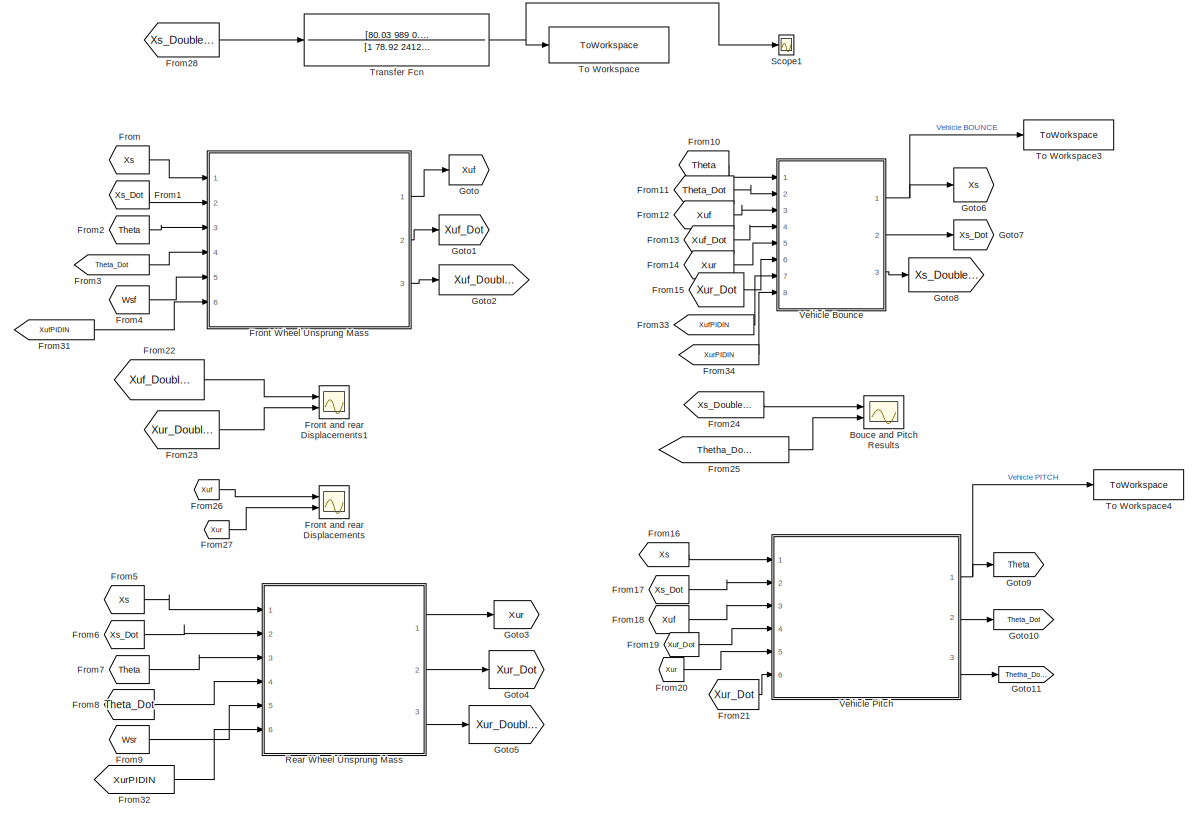
[diagram: root canvas - part 1/2, right side, full height]
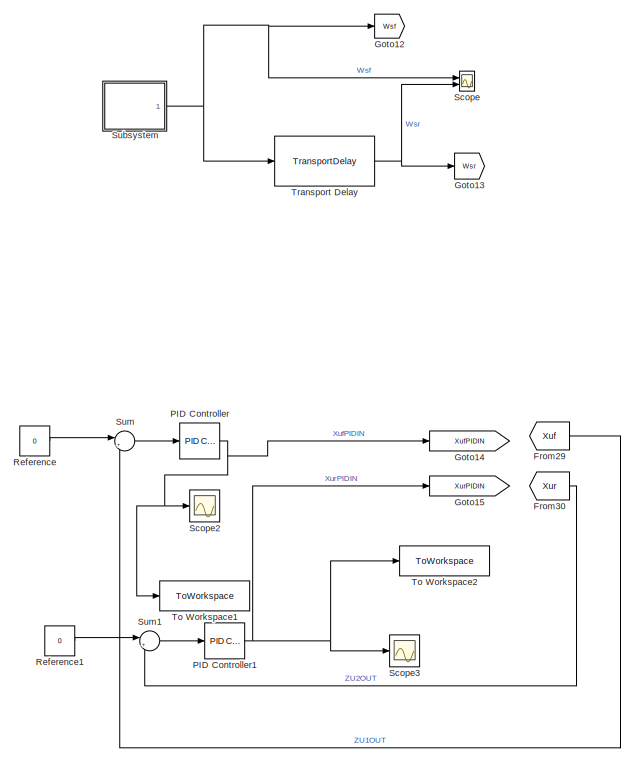
[diagram: root canvas - part 2/2, left side, full height]
MODEL slx_b99695bca971
KIND model
CONFIG AbsTol = auto
CONFIG EnableMultiTasking = off
CONFIG FixedStep = auto
CONFIG InitFcn = Lf = 1.04;\nKsf = 33200;\nKsr = 43160;\nCsf = 1760;\nCsr = 1627;\nKuf =152000;\nCuf = 0;\nMuf = 48;\nMb = 477.5;\nLr = 1.4;\nKur = 152000;\nCur = 0;\nMur = 57;\nv=45;\nI=1380;\n
CONFIG MaxStep = auto
CONFIG MinStep = auto
CONFIG RelTol = 1e-3
CONFIG SampleTimeConstraint = Unconstrained
CONFIG SolverName = VariableStepAuto
CONFIG StartTime = 0.0
CONFIG StopTime = 10.0
BLOCK [Scope] Bouce and Pitch Results
  Floating = off
  NumInputPorts = 2
  Ports = [2]
  ScopeSpecificationString = Simulink.scopes.TimeScopeBlockCfg('CurrentConfiguration', extmgr.ConfigurationSet(extmgr.Configuration('Core','General UI',true),extmgr.Configuration('Core','Source UI',true),extmgr.Configuration('Sources','WiredSimulink',true,'DataLoggingVariableName','ScopeData3'),extmgr.Configuration('Visuals','Time Domain',true,'SerializedDisplays',{struct('MinYLimReal','-2.93103','MaxYLimReal','3.24682','YLab...<+1773ch>
BLOCK [From] From
  GotoTag = Xs
BLOCK [From] From1
  GotoTag = Xs_Dot
BLOCK [From] From10
  GotoTag = Theta
BLOCK [From] From11
  GotoTag = Theta_Dot
BLOCK [From] From12
  GotoTag = Xuf
BLOCK [From] From13
  GotoTag = Xuf_Dot
BLOCK [From] From14
  GotoTag = Xur
BLOCK [From] From15
  GotoTag = Xur_Dot
BLOCK [From] From16
  GotoTag = Xs
BLOCK [From] From17
  GotoTag = Xs_Dot
BLOCK [From] From18
  GotoTag = Xuf
BLOCK [From] From19
  GotoTag = Xuf_Dot
BLOCK [From] From2
  GotoTag = Theta
BLOCK [From] From20
  GotoTag = Xur
BLOCK [From] From21
  GotoTag = Xur_Dot
BLOCK [From] From22
  GotoTag = Xuf_DoubleDot
BLOCK [From] From23
  GotoTag = Xur_DoubleDot
BLOCK [From] From24
  GotoTag = Xs_DoubleDot
BLOCK [From] From25
  GotoTag = Thetha_DoubleDot
BLOCK [From] From26
  GotoTag = Xuf
BLOCK [From] From27
  GotoTag = Xur
BLOCK [From] From28
  GotoTag = Xs_DoubleDot
BLOCK [From] From29
  GotoTag = Xuf
BLOCK [From] From3
  GotoTag = Theta_Dot
BLOCK [From] From30
  GotoTag = Xur
BLOCK [From] From31
  GotoTag = XufPIDIN
BLOCK [From] From32
  GotoTag = XurPIDIN
BLOCK [From] From33
  GotoTag = XufPIDIN
BLOCK [From] From34
  GotoTag = XurPIDIN
BLOCK [From] From4
  GotoTag = Wsf
BLOCK [From] From5
  GotoTag = Xs
BLOCK [From] From6
  GotoTag = Xs_Dot
BLOCK [From] From7
  GotoTag = Theta
BLOCK [From] From8
  GotoTag = Theta_Dot
BLOCK [From] From9
  GotoTag = Wsr
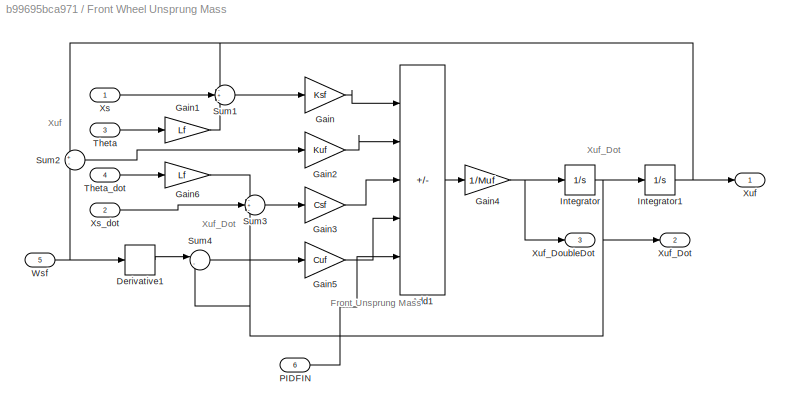
BLOCK [SubSystem] Front Wheel Unsprung Mass
  Ports = [6, 3]
  RequestExecContextInheritance = off
BLOCK [Sum] Front Wheel Unsprung Mass/Add1
  IconShape = rectangular
  Inputs = +-+--
  Ports = [5, 1]
BLOCK [Derivative] Front Wheel Unsprung Mass/Derivative1
BLOCK [Gain] Front Wheel Unsprung Mass/Gain
  Gain = Ksf
BLOCK [Gain] Front Wheel Unsprung Mass/Gain1
  Gain = Lf
BLOCK [Gain] Front Wheel Unsprung Mass/Gain2
  Gain = Kuf
BLOCK [Gain] Front Wheel Unsprung Mass/Gain3
  Gain = Csf
BLOCK [Gain] Front Wheel Unsprung Mass/Gain4
  Gain = 1/Muf
BLOCK [Gain] Front Wheel Unsprung Mass/Gain5
  Gain = Cuf
BLOCK [Gain] Front Wheel Unsprung Mass/Gain6
  Gain = Lf
BLOCK [Integrator] Front Wheel Unsprung Mass/Integrator
  Ports = [1, 1]
BLOCK [Integrator] Front Wheel Unsprung Mass/Integrator1
  Ports = [1, 1]
BLOCK [Inport] Front Wheel Unsprung Mass/PIDFIN
  Port = 6
BLOCK [Sum] Front Wheel Unsprung Mass/Sum1
  Inputs = -+-
  Ports = [3, 1]
BLOCK [Sum] Front Wheel Unsprung Mass/Sum2
  Inputs = +-
  Ports = [2, 1]
BLOCK [Sum] Front Wheel Unsprung Mass/Sum3
  Inputs = -+-
  Ports = [3, 1]
BLOCK [Sum] Front Wheel Unsprung Mass/Sum4
  Inputs = |-+
  Ports = [2, 1]
BLOCK [Inport] Front Wheel Unsprung Mass/Theta
  Port = 3
BLOCK [Inport] Front Wheel Unsprung Mass/Theta_dot
  Port = 4
BLOCK [Inport] Front Wheel Unsprung Mass/Wsf
  Port = 5
BLOCK [Inport] Front Wheel Unsprung Mass/Xs
BLOCK [Inport] Front Wheel Unsprung Mass/Xs_dot
  Port = 2
BLOCK [Outport] Front Wheel Unsprung Mass/Xuf
  VectorParamsAs1DForOutWhenUnconnected = off
BLOCK [Outport] Front Wheel Unsprung Mass/Xuf_Dot
  Port = 2
  VectorParamsAs1DForOutWhenUnconnected = off
BLOCK [Outport] Front Wheel Unsprung Mass/Xuf_DoubleDot
  Port = 3
  VectorParamsAs1DForOutWhenUnconnected = off
BLOCK [Scope] Front and rear Displacements
  Floating = off
  NameLocation = right
  NumInputPorts = 2
  Ports = [2]
  ScopeSpecificationString = Simulink.scopes.TimeScopeBlockCfg('CurrentConfiguration', extmgr.ConfigurationSet(extmgr.Configuration('Core','General UI',true),extmgr.Configuration('Core','Source UI',true),extmgr.Configuration('Sources','WiredSimulink',true,'DataLoggingVariableName','ScopeData4'),extmgr.Configuration('Visuals','Time Domain',true,'SerializedDisplays',{struct('MinYLimReal','-0.02464','MaxYLimReal','0.02086','YLab...<+1423ch>
BLOCK [Scope] Front and rear Displacements1
  Floating = off
  NameLocation = right
  NumInputPorts = 2
  Ports = [2]
  ScopeSpecificationString = Simulink.scopes.TimeScopeBlockCfg('CurrentConfiguration', extmgr.ConfigurationSet(extmgr.Configuration('Core','General UI',true),extmgr.Configuration('Core','Source UI',true),extmgr.Configuration('Sources','WiredSimulink',true,'DataLoggingVariableName','ScopeData2'),extmgr.Configuration('Visuals','Time Domain',true,'SerializedDisplays',{struct('MinYLimReal','-0.02464','MaxYLimReal','0.02086','YLab...<+1423ch>
BLOCK [Goto] Goto
  GotoTag = Xuf
BLOCK [Goto] Goto1
  GotoTag = Xuf_Dot
BLOCK [Goto] Goto10
  GotoTag = Theta_Dot
BLOCK [Goto] Goto11
  GotoTag = Thetha_DoubleDot
BLOCK [Goto] Goto12
  GotoTag = Wsf
BLOCK [Goto] Goto13
  GotoTag = Wsr
BLOCK [Goto] Goto14
  GotoTag = XufPIDIN
BLOCK [Goto] Goto15
  GotoTag = XurPIDIN
BLOCK [Goto] Goto2
  GotoTag = Xuf_DoubleDot
BLOCK [Goto] Goto3
  GotoTag = Xur
BLOCK [Goto] Goto4
  GotoTag = Xur_Dot
BLOCK [Goto] Goto5
  GotoTag = Xur_DoubleDot
BLOCK [Goto] Goto6
  GotoTag = Xs
BLOCK [Goto] Goto7
  GotoTag = Xs_Dot
BLOCK [Goto] Goto8
  GotoTag = Xs_DoubleDot
BLOCK [Goto] Goto9
  GotoTag = Theta
BLOCK [Reference] PID Controller  REF=pid_lib/PID Controller
  Ports = [1, 1]
  SourceBlock = pid_lib/PID Controller
  SourceProductBaseCode = SL
  SourceType = PID 1dof
BLOCK [Reference] PID Controller1  REF=pid_lib/PID Controller
  Ports = [1, 1]
  SourceBlock = pid_lib/PID Controller
  SourceProductBaseCode = SL
  SourceType = PID 1dof
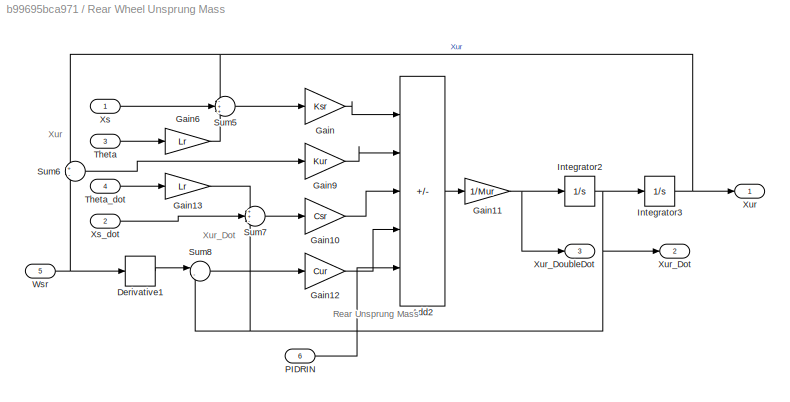
BLOCK [SubSystem] Rear Wheel Unsprung Mass
  Ports = [6, 3]
  RequestExecContextInheritance = off
BLOCK [Sum] Rear Wheel Unsprung Mass/Add2
  IconShape = rectangular
  Inputs = +-+--
  Ports = [5, 1]
BLOCK [Derivative] Rear Wheel Unsprung Mass/Derivative1
BLOCK [Gain] Rear Wheel Unsprung Mass/Gain
  Gain = Ksr
BLOCK [Gain] Rear Wheel Unsprung Mass/Gain10
  Gain = Csr
BLOCK [Gain] Rear Wheel Unsprung Mass/Gain11
  Gain = 1/Mur
BLOCK [Gain] Rear Wheel Unsprung Mass/Gain12
  Gain = Cur
BLOCK [Gain] Rear Wheel Unsprung Mass/Gain13
  Gain = Lr
BLOCK [Gain] Rear Wheel Unsprung Mass/Gain6
  Gain = Lr
BLOCK [Gain] Rear Wheel Unsprung Mass/Gain9
  Gain = Kur
BLOCK [Integrator] Rear Wheel Unsprung Mass/Integrator2
  Ports = [1, 1]
BLOCK [Integrator] Rear Wheel Unsprung Mass/Integrator3
  Ports = [1, 1]
BLOCK [Inport] Rear Wheel Unsprung Mass/PIDRIN
  Port = 6
BLOCK [Sum] Rear Wheel Unsprung Mass/Sum5
  Inputs = -++
  Ports = [3, 1]
BLOCK [Sum] Rear Wheel Unsprung Mass/Sum6
  Inputs = +-
  Ports = [2, 1]
BLOCK [Sum] Rear Wheel Unsprung Mass/Sum7
  Inputs = ++-
  Ports = [3, 1]
BLOCK [Sum] Rear Wheel Unsprung Mass/Sum8
  Inputs = |-+
  Ports = [2, 1]
BLOCK [Inport] Rear Wheel Unsprung Mass/Theta
  Port = 3
BLOCK [Inport] Rear Wheel Unsprung Mass/Theta_dot
  Port = 4
BLOCK [Inport] Rear Wheel Unsprung Mass/Wsr
  Port = 5
BLOCK [Inport] Rear Wheel Unsprung Mass/Xs
BLOCK [Inport] Rear Wheel Unsprung Mass/Xs_dot
  Port = 2
BLOCK [Outport] Rear Wheel Unsprung Mass/Xur
  VectorParamsAs1DForOutWhenUnconnected = off
BLOCK [Outport] Rear Wheel Unsprung Mass/Xur_Dot
  Port = 2
  VectorParamsAs1DForOutWhenUnconnected = off
BLOCK [Outport] Rear Wheel Unsprung Mass/Xur_DoubleDot
  Port = 3
  VectorParamsAs1DForOutWhenUnconnected = off
BLOCK [Constant] Reference
  Value = 0
BLOCK [Constant] Reference1
  Value = 0
BLOCK [Scope] Scope
  Floating = off
  NumInputPorts = 2
  Ports = [2]
  ScopeSpecificationString = Simulink.scopes.TimeScopeBlockCfg('CurrentConfiguration', extmgr.ConfigurationSet(extmgr.Configuration('Core','General UI',true),extmgr.Configuration('Core','Source UI',true),extmgr.Configuration('Sources','WiredSimulink',true,'DataLoggingVariableName','ScopeData1'),extmgr.Configuration('Visuals','Time Domain',true,'SerializedDisplays',{struct('MinYLimReal','-0.01243','MaxYLimReal','0.01409','YLab...<+1441ch>
BLOCK [Scope] Scope1
  Floating = off
  NumInputPorts = 1
  Ports = [1]
  ScopeSpecificationString = Simulink.scopes.TimeScopeBlockCfg('CurrentConfiguration', extmgr.ConfigurationSet(extmgr.Configuration('Core','General UI',true),extmgr.Configuration('Core','Source UI',true),extmgr.Configuration('Sources','WiredSimulink',true,'DataLoggingVariableName','ScopeData1'),extmgr.Configuration('Visuals','Time Domain',true,'SerializedDisplays',{struct('MinYLimReal','-2.33878','MaxYLimReal','2.44524','YLab...<+1674ch>
BLOCK [Scope] Scope2
  Floating = off
  NumInputPorts = 1
  Ports = [1]
  ScopeSpecificationString = Simulink.scopes.TimeScopeBlockCfg('CurrentConfiguration', extmgr.ConfigurationSet(extmgr.Configuration('Core','General UI',true),extmgr.Configuration('Core','Source UI',true),extmgr.Configuration('Sources','WiredSimulink',true,'DataLoggingVariableName','ScopeData1'),extmgr.Configuration('Visuals','Time Domain',true,'SerializedDisplays',{struct('MinYLimReal','-10.31479','MaxYLimReal','12.48243','YL...<+1400ch>
BLOCK [Scope] Scope3
  Floating = off
  NumInputPorts = 1
  Ports = [1]
  ScopeSpecificationString = Simulink.scopes.TimeScopeBlockCfg('CurrentConfiguration', extmgr.ConfigurationSet(extmgr.Configuration('Core','General UI',true),extmgr.Configuration('Core','Source UI',true),extmgr.Configuration('Sources','WiredSimulink',true,'DataLoggingVariableName','ScopeData2'),extmgr.Configuration('Visuals','Time Domain',true,'SerializedDisplays',{struct('MinYLimReal','-8.01177','MaxYLimReal','10.52695','YLa...<+1398ch>
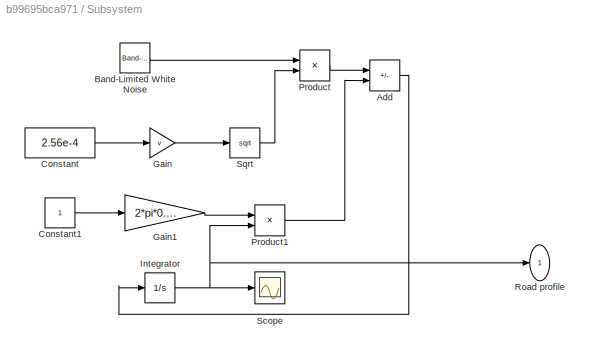
BLOCK [SubSystem] Subsystem
  Ports = [0, 1]
  RequestExecContextInheritance = off
BLOCK [Sum] Subsystem/Add
  IconShape = rectangular
  Inputs = +-
  Ports = [2, 1]
BLOCK [Reference] Subsystem/Band-Limited White Noise  REF=simulink/Sources/Band-Limited
White Noise
  Ports = [0, 1]
  SourceBlock = simulink/Sources/Band-Limited\nWhite Noise
  SourceProductBaseCode = SL
  SourceType = Band-Limited White Noise.
BLOCK [Constant] Subsystem/Constant
  Value = 2.56e-4
BLOCK [Constant] Subsystem/Constant1
BLOCK [Gain] Subsystem/Gain
  Gain = v
BLOCK [Gain] Subsystem/Gain1
  Gain = 2*pi*0.1*v
BLOCK [Integrator] Subsystem/Integrator
  Ports = [1, 1]
BLOCK [Product] Subsystem/Product
  Ports = [2, 1]
BLOCK [Product] Subsystem/Product1
  Ports = [2, 1]
BLOCK [Outport] Subsystem/Road profile
  NameLocation = top
  VectorParamsAs1DForOutWhenUnconnected = off
BLOCK [Scope] Subsystem/Scope
  Floating = off
  NumInputPorts = 1
  Ports = [1]
  ScopeSpecificationString = Simulink.scopes.TimeScopeBlockCfg('CurrentConfiguration', extmgr.ConfigurationSet(extmgr.Configuration('Core','General UI',true),extmgr.Configuration('Core','Source UI',true),extmgr.Configuration('Sources','WiredSimulink',true),extmgr.Configuration('Visuals','Time Domain',true,'SerializedDisplays',{struct('MinYLimReal','-0.01945','MaxYLimReal','0.01674','YLabelReal','','MinYLimMag','0.00000','MaxY...<+1425ch>
BLOCK [Sqrt] Subsystem/Sqrt
BLOCK [Sum] Sum
  Inputs = |+-
  Ports = [2, 1]
BLOCK [Sum] Sum1
  Inputs = |+-
  Ports = [2, 1]
BLOCK [ToWorkspace] To Workspace
  FixptAsFi = on
  MaxDataPoints = inf
  Ports = [1]
  SampleTime = -1
  VariableName = WeightedAcceleration
BLOCK [ToWorkspace] To Workspace1
  FixptAsFi = on
  MaxDataPoints = inf
  Ports = [1]
  SampleTime = -1
  SaveFormat = Timeseries
  VariableName = XufPIDIN
BLOCK [ToWorkspace] To Workspace2
  FixptAsFi = on
  MaxDataPoints = inf
  Ports = [1]
  SampleTime = -1
  SaveFormat = Timeseries
  VariableName = XurPIDIN
BLOCK [ToWorkspace] To Workspace3
  FixptAsFi = on
  MaxDataPoints = inf
  Ports = [1]
  SampleTime = -1
  SaveFormat = Timeseries
  VariableName = bounce
BLOCK [ToWorkspace] To Workspace4
  FixptAsFi = on
  MaxDataPoints = inf
  Ports = [1]
  SampleTime = -1
  SaveFormat = Timeseries
  VariableName = pitch
BLOCK [TransferFcn] Transfer Fcn
  Denominator = [1 78.92 2412 5614]
  Numerator = [80.03 989 0.021]
BLOCK [TransportDelay] Transport Delay
  DelayTime = 2.44/v
  Ports = [1, 1]
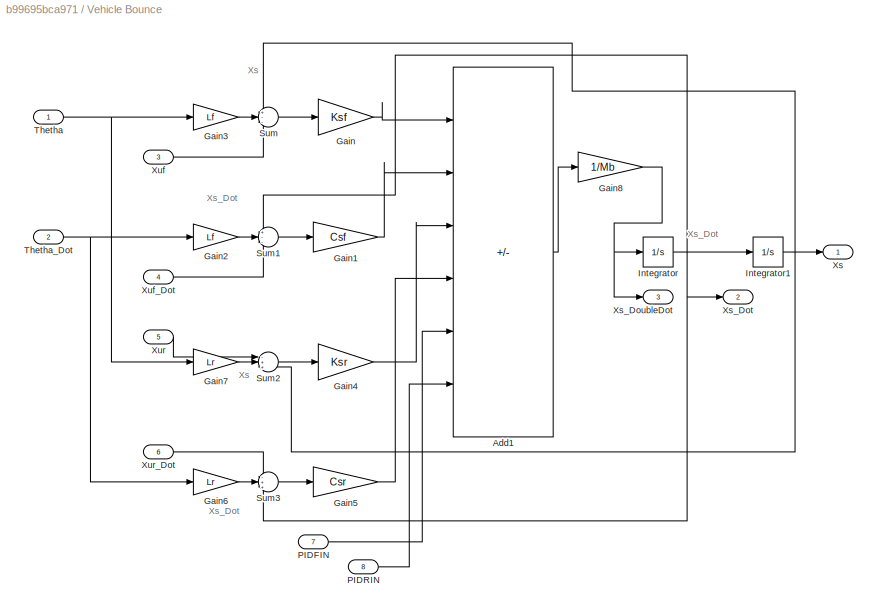
BLOCK [SubSystem] Vehicle Bounce
  Ports = [8, 3]
  RequestExecContextInheritance = off
BLOCK [Sum] Vehicle Bounce/Add1
  IconShape = rectangular
  Inputs = ----++
  Ports = [6, 1]
BLOCK [Gain] Vehicle Bounce/Gain
  Gain = Ksf
BLOCK [Gain] Vehicle Bounce/Gain1
  Gain = Csf
BLOCK [Gain] Vehicle Bounce/Gain2
  Gain = Lf
BLOCK [Gain] Vehicle Bounce/Gain3
  Gain = Lf
BLOCK [Gain] Vehicle Bounce/Gain4
  Gain = Ksr
BLOCK [Gain] Vehicle Bounce/Gain5
  Gain = Csr
BLOCK [Gain] Vehicle Bounce/Gain6
  Gain = Lr
BLOCK [Gain] Vehicle Bounce/Gain7
  Gain = Lr
BLOCK [Gain] Vehicle Bounce/Gain8
  Gain = 1/Mb
BLOCK [Integrator] Vehicle Bounce/Integrator
  Ports = [1, 1]
BLOCK [Integrator] Vehicle Bounce/Integrator1
  Ports = [1, 1]
BLOCK [Inport] Vehicle Bounce/PIDFIN
  Port = 7
BLOCK [Inport] Vehicle Bounce/PIDRIN
  Port = 8
BLOCK [Sum] Vehicle Bounce/Sum
  Inputs = +--
  Ports = [3, 1]
BLOCK [Sum] Vehicle Bounce/Sum1
  Inputs = +--
  Ports = [3, 1]
BLOCK [Sum] Vehicle Bounce/Sum2
  Inputs = -++
  Ports = [3, 1]
BLOCK [Sum] Vehicle Bounce/Sum3
  Inputs = -++
  Ports = [3, 1]
BLOCK [Inport] Vehicle Bounce/Thetha
BLOCK [Inport] Vehicle Bounce/Thetha_Dot
  Port = 2
BLOCK [Outport] Vehicle Bounce/Xs
  VectorParamsAs1DForOutWhenUnconnected = off
BLOCK [Outport] Vehicle Bounce/Xs_Dot
  Port = 2
  VectorParamsAs1DForOutWhenUnconnected = off
BLOCK [Outport] Vehicle Bounce/Xs_DoubleDot
  Port = 3
  VectorParamsAs1DForOutWhenUnconnected = off
BLOCK [Inport] Vehicle Bounce/Xuf
  Port = 3
BLOCK [Inport] Vehicle Bounce/Xuf_Dot
  Port = 4
BLOCK [Inport] Vehicle Bounce/Xur
  Port = 5
BLOCK [Inport] Vehicle Bounce/Xur_Dot
  Port = 6
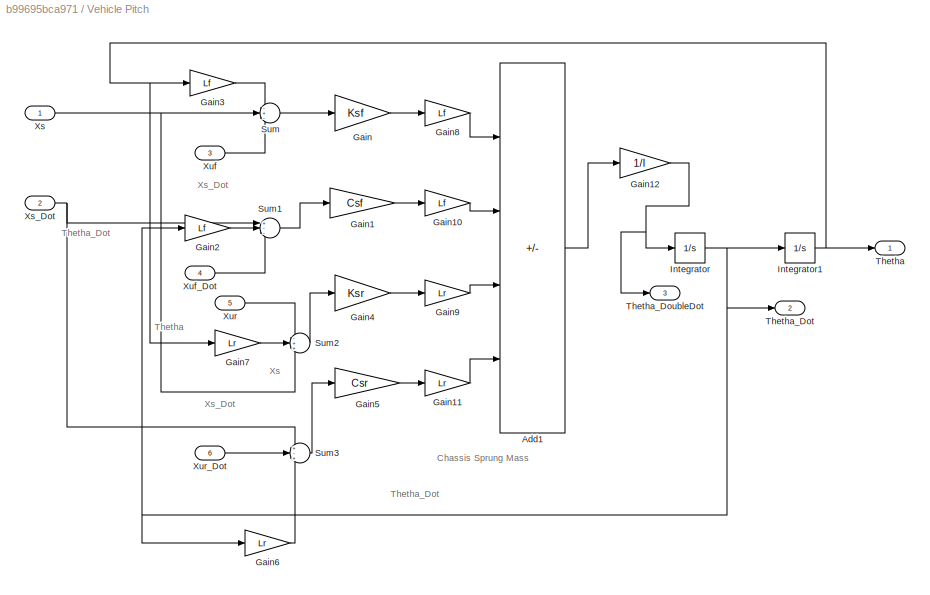
BLOCK [SubSystem] Vehicle Pitch
  Ports = [6, 3]
  RequestExecContextInheritance = off
BLOCK [Sum] Vehicle Pitch/Add1
  IconShape = rectangular
  Inputs = ++--
  Ports = [4, 1]
BLOCK [Gain] Vehicle Pitch/Gain
  Gain = Ksf
BLOCK [Gain] Vehicle Pitch/Gain1
  Gain = Csf
BLOCK [Gain] Vehicle Pitch/Gain10
  Gain = Lf
BLOCK [Gain] Vehicle Pitch/Gain11
  Gain = Lr
BLOCK [Gain] Vehicle Pitch/Gain12
  Gain = 1/I
BLOCK [Gain] Vehicle Pitch/Gain2
  Gain = Lf
BLOCK [Gain] Vehicle Pitch/Gain3
  Gain = Lf
BLOCK [Gain] Vehicle Pitch/Gain4
  Gain = Ksr
BLOCK [Gain] Vehicle Pitch/Gain5
  Gain = Csr
BLOCK [Gain] Vehicle Pitch/Gain6
  Gain = Lr
BLOCK [Gain] Vehicle Pitch/Gain7
  Gain = Lr
BLOCK [Gain] Vehicle Pitch/Gain8
  Gain = Lf
BLOCK [Gain] Vehicle Pitch/Gain9
  Gain = Lr
BLOCK [Integrator] Vehicle Pitch/Integrator
  Ports = [1, 1]
BLOCK [Integrator] Vehicle Pitch/Integrator1
  Ports = [1, 1]
BLOCK [Sum] Vehicle Pitch/Sum
  Inputs = -+-
  Ports = [3, 1]
BLOCK [Sum] Vehicle Pitch/Sum1
  Inputs = +--
  Ports = [3, 1]
BLOCK [Sum] Vehicle Pitch/Sum2
  Inputs = -++
  Ports = [3, 1]
BLOCK [Sum] Vehicle Pitch/Sum3
  Inputs = +-+
  Ports = [3, 1]
BLOCK [Outport] Vehicle Pitch/Thetha
  VectorParamsAs1DForOutWhenUnconnected = off
BLOCK [Outport] Vehicle Pitch/Thetha_Dot
  Port = 2
  VectorParamsAs1DForOutWhenUnconnected = off
BLOCK [Outport] Vehicle Pitch/Thetha_DoubleDot
  Port = 3
  VectorParamsAs1DForOutWhenUnconnected = off
BLOCK [Inport] Vehicle Pitch/Xs
BLOCK [Inport] Vehicle Pitch/Xs_Dot
  Port = 2
BLOCK [Inport] Vehicle Pitch/Xuf
  Port = 3
BLOCK [Inport] Vehicle Pitch/Xuf_Dot
  Port = 4
BLOCK [Inport] Vehicle Pitch/Xur
  Port = 5
BLOCK [Inport] Vehicle Pitch/Xur_Dot
  Port = 6
ANNOTATION Front Wheel Unsprung Mass: Front Unsprung Mass
ANNOTATION Front Wheel Unsprung Mass: Xuf
ANNOTATION Front Wheel Unsprung Mass: Xuf_Dot
ANNOTATION Rear Wheel Unsprung Mass: Rear Unsprung Mass
ANNOTATION Rear Wheel Unsprung Mass: Xur
ANNOTATION Rear Wheel Unsprung Mass: Xur_Dot
ANNOTATION Vehicle Bounce: Xs
ANNOTATION Vehicle Bounce: Xs_Dot
ANNOTATION Vehicle Pitch: Chassis Sprung Mass
ANNOTATION Vehicle Pitch: Thetha
ANNOTATION Vehicle Pitch: Thetha_Dot
ANNOTATION Vehicle Pitch: Xs
ANNOTATION Vehicle Pitch: Xs_Dot
LINE From10:1 -> Vehicle Bounce:1
LINE From11:1 -> Vehicle Bounce:2
LINE From12:1 -> Vehicle Bounce:3
LINE From13:1 -> Vehicle Bounce:4
LINE From14:1 -> Vehicle Bounce:5
LINE From15:1 -> Vehicle Bounce:6
LINE From16:1 -> Vehicle Pitch:1
LINE From17:1 -> Vehicle Pitch:2
LINE From18:1 -> Vehicle Pitch:3
LINE From19:1 -> Vehicle Pitch:4
LINE From1:1 -> Front Wheel Unsprung Mass:2
LINE From20:1 -> Vehicle Pitch:5
LINE From21:1 -> Vehicle Pitch:6
LINE From22:1 -> Front and rear Displacements1:1
LINE From23:1 -> Front and rear Displacements1:2
LINE From24:1 -> Bouce and Pitch Results:1
LINE From25:1 -> Bouce and Pitch Results:2
LINE From26:1 -> Front and rear Displacements:1
LINE From27:1 -> Front and rear Displacements:2
LINE From28:1 -> Transfer Fcn:1
LINE From29:1 -> Sum:2
LINE From2:1 -> Front Wheel Unsprung Mass:3
LINE From30:1 -> Sum1:2
LINE From31:1 -> Front Wheel Unsprung Mass:6
LINE From32:1 -> Rear Wheel Unsprung Mass:6
LINE From33:1 -> Vehicle Bounce:7
LINE From34:1 -> Vehicle Bounce:8
LINE From3:1 -> Front Wheel Unsprung Mass:4
LINE From4:1 -> Front Wheel Unsprung Mass:5
LINE From5:1 -> Rear Wheel Unsprung Mass:1
LINE From6:1 -> Rear Wheel Unsprung Mass:2
LINE From7:1 -> Rear Wheel Unsprung Mass:3
LINE From8:1 -> Rear Wheel Unsprung Mass:4
LINE From9:1 -> Rear Wheel Unsprung Mass:5
LINE From:1 -> Front Wheel Unsprung Mass:1
LINE Front Wheel Unsprung Mass/Add1:1 -> Front Wheel Unsprung Mass/Gain4:1
LINE Front Wheel Unsprung Mass/Derivative1:1 -> Front Wheel Unsprung Mass/Sum4:1
LINE Front Wheel Unsprung Mass/Gain1:1 -> Front Wheel Unsprung Mass/Sum1:3
LINE Front Wheel Unsprung Mass/Gain2:1 -> Front Wheel Unsprung Mass/Add1:2
LINE Front Wheel Unsprung Mass/Gain3:1 -> Front Wheel Unsprung Mass/Add1:3
NET Front Wheel Unsprung Mass/Gain4:1 -> Front Wheel Unsprung Mass/Integrator:1, Front Wheel Unsprung Mass/Xuf_DoubleDot:1
LINE Front Wheel Unsprung Mass/Gain5:1 -> Front Wheel Unsprung Mass/Add1:4
LINE Front Wheel Unsprung Mass/Gain6:1 -> Front Wheel Unsprung Mass/Sum3:1
LINE Front Wheel Unsprung Mass/Gain:1 -> Front Wheel Unsprung Mass/Add1:1
NET Front Wheel Unsprung Mass/Integrator1:1 -> Front Wheel Unsprung Mass/Sum1:1, Front Wheel Unsprung Mass/Sum2:1, Front Wheel Unsprung Mass/Xuf:1
NET Front Wheel Unsprung Mass/Integrator:1 -> Front Wheel Unsprung Mass/Integrator1:1, Front Wheel Unsprung Mass/Sum3:3, Front Wheel Unsprung Mass/Sum4:2, Front Wheel Unsprung Mass/Xuf_Dot:1
LINE Front Wheel Unsprung Mass/PIDFIN:1 -> Front Wheel Unsprung Mass/Add1:5
LINE Front Wheel Unsprung Mass/Sum1:1 -> Front Wheel Unsprung Mass/Gain:1
LINE Front Wheel Unsprung Mass/Sum2:1 -> Front Wheel Unsprung Mass/Gain2:1
LINE Front Wheel Unsprung Mass/Sum3:1 -> Front Wheel Unsprung Mass/Gain3:1
LINE Front Wheel Unsprung Mass/Sum4:1 -> Front Wheel Unsprung Mass/Gain5:1
LINE Front Wheel Unsprung Mass/Theta:1 -> Front Wheel Unsprung Mass/Gain1:1
LINE Front Wheel Unsprung Mass/Theta_dot:1 -> Front Wheel Unsprung Mass/Gain6:1
NET Front Wheel Unsprung Mass/Wsf:1 -> Front Wheel Unsprung Mass/Derivative1:1, Front Wheel Unsprung Mass/Sum2:2
LINE Front Wheel Unsprung Mass/Xs:1 -> Front Wheel Unsprung Mass/Sum1:2
LINE Front Wheel Unsprung Mass/Xs_dot:1 -> Front Wheel Unsprung Mass/Sum3:2
LINE Front Wheel Unsprung Mass:1 -> Goto:1
LINE Front Wheel Unsprung Mass:2 -> Goto1:1
LINE Front Wheel Unsprung Mass:3 -> Goto2:1
NET PID Controller1:1 -> Goto15:1, Scope3:1, To Workspace2:1
NET PID Controller:1 -> Goto14:1, Scope2:1, To Workspace1:1
LINE Rear Wheel Unsprung Mass/Add2:1 -> Rear Wheel Unsprung Mass/Gain11:1
LINE Rear Wheel Unsprung Mass/Derivative1:1 -> Rear Wheel Unsprung Mass/Sum8:1
LINE Rear Wheel Unsprung Mass/Gain10:1 -> Rear Wheel Unsprung Mass/Add2:3
NET Rear Wheel Unsprung Mass/Gain11:1 -> Rear Wheel Unsprung Mass/Integrator2:1, Rear Wheel Unsprung Mass/Xur_DoubleDot:1
LINE Rear Wheel Unsprung Mass/Gain12:1 -> Rear Wheel Unsprung Mass/Add2:4
LINE Rear Wheel Unsprung Mass/Gain13:1 -> Rear Wheel Unsprung Mass/Sum7:1
LINE Rear Wheel Unsprung Mass/Gain6:1 -> Rear Wheel Unsprung Mass/Sum5:3
LINE Rear Wheel Unsprung Mass/Gain9:1 -> Rear Wheel Unsprung Mass/Add2:2
LINE Rear Wheel Unsprung Mass/Gain:1 -> Rear Wheel Unsprung Mass/Add2:1
NET Rear Wheel Unsprung Mass/Integrator2:1 -> Rear Wheel Unsprung Mass/Integrator3:1, Rear Wheel Unsprung Mass/Sum7:3, Rear Wheel Unsprung Mass/Sum8:2, Rear Wheel Unsprung Mass/Xur_Dot:1
NET Rear Wheel Unsprung Mass/Integrator3:1 -> Rear Wheel Unsprung Mass/Sum5:1, Rear Wheel Unsprung Mass/Sum6:1, Rear Wheel Unsprung Mass/Xur:1
LINE Rear Wheel Unsprung Mass/PIDRIN:1 -> Rear Wheel Unsprung Mass/Add2:5
LINE Rear Wheel Unsprung Mass/Sum5:1 -> Rear Wheel Unsprung Mass/Gain:1
LINE Rear Wheel Unsprung Mass/Sum6:1 -> Rear Wheel Unsprung Mass/Gain9:1
LINE Rear Wheel Unsprung Mass/Sum7:1 -> Rear Wheel Unsprung Mass/Gain10:1
LINE Rear Wheel Unsprung Mass/Sum8:1 -> Rear Wheel Unsprung Mass/Gain12:1
LINE Rear Wheel Unsprung Mass/Theta:1 -> Rear Wheel Unsprung Mass/Gain6:1
LINE Rear Wheel Unsprung Mass/Theta_dot:1 -> Rear Wheel Unsprung Mass/Gain13:1
NET Rear Wheel Unsprung Mass/Wsr:1 -> Rear Wheel Unsprung Mass/Derivative1:1, Rear Wheel Unsprung Mass/Sum6:2
LINE Rear Wheel Unsprung Mass/Xs:1 -> Rear Wheel Unsprung Mass/Sum5:2
LINE Rear Wheel Unsprung Mass/Xs_dot:1 -> Rear Wheel Unsprung Mass/Sum7:2
LINE Rear Wheel Unsprung Mass:1 -> Goto3:1
LINE Rear Wheel Unsprung Mass:2 -> Goto4:1
LINE Rear Wheel Unsprung Mass:3 -> Goto5:1
LINE Reference1:1 -> Sum1:1
LINE Reference:1 -> Sum:1
LINE Subsystem/Add:1 -> Subsystem/Integrator:1
LINE Subsystem/Band-Limited White Noise:1 -> Subsystem/Product:1
LINE Subsystem/Constant1:1 -> Subsystem/Gain1:1
LINE Subsystem/Constant:1 -> Subsystem/Gain:1
LINE Subsystem/Gain1:1 -> Subsystem/Product1:1
LINE Subsystem/Gain:1 -> Subsystem/Sqrt:1
NET Subsystem/Integrator:1 -> Subsystem/Product1:2, Subsystem/Road profile:1, Subsystem/Scope:1
LINE Subsystem/Product1:1 -> Subsystem/Add:2
LINE Subsystem/Product:1 -> Subsystem/Add:1
LINE Subsystem/Sqrt:1 -> Subsystem/Product:2
NET Subsystem:1 -> Goto12:1, Scope:1, Transport Delay:1
LINE Sum1:1 -> PID Controller1:1
LINE Sum:1 -> PID Controller:1
NET Transfer Fcn:1 -> Scope1:1, To Workspace:1
NET Transport Delay:1 -> Goto13:1, Scope:2
LINE Vehicle Bounce/Add1:1 -> Vehicle Bounce/Gain8:1
LINE Vehicle Bounce/Gain1:1 -> Vehicle Bounce/Add1:2
LINE Vehicle Bounce/Gain2:1 -> Vehicle Bounce/Sum1:2
LINE Vehicle Bounce/Gain3:1 -> Vehicle Bounce/Sum:2
LINE Vehicle Bounce/Gain4:1 -> Vehicle Bounce/Add1:3
LINE Vehicle Bounce/Gain5:1 -> Vehicle Bounce/Add1:4
LINE Vehicle Bounce/Gain6:1 -> Vehicle Bounce/Sum3:2
LINE Vehicle Bounce/Gain7:1 -> Vehicle Bounce/Sum2:2
NET Vehicle Bounce/Gain8:1 -> Vehicle Bounce/Integrator:1, Vehicle Bounce/Xs_DoubleDot:1
LINE Vehicle Bounce/Gain:1 -> Vehicle Bounce/Add1:1
NET Vehicle Bounce/Integrator1:1 -> Vehicle Bounce/Sum2:3, Vehicle Bounce/Sum:1, Vehicle Bounce/Xs:1
NET Vehicle Bounce/Integrator:1 -> Vehicle Bounce/Integrator1:1, Vehicle Bounce/Sum1:1, Vehicle Bounce/Sum3:3, Vehicle Bounce/Xs_Dot:1
LINE Vehicle Bounce/PIDFIN:1 -> Vehicle Bounce/Add1:5
LINE Vehicle Bounce/PIDRIN:1 -> Vehicle Bounce/Add1:6
LINE Vehicle Bounce/Sum1:1 -> Vehicle Bounce/Gain1:1
LINE Vehicle Bounce/Sum2:1 -> Vehicle Bounce/Gain4:1
LINE Vehicle Bounce/Sum3:1 -> Vehicle Bounce/Gain5:1
LINE Vehicle Bounce/Sum:1 -> Vehicle Bounce/Gain:1
NET Vehicle Bounce/Thetha:1 -> Vehicle Bounce/Gain3:1, Vehicle Bounce/Gain7:1
NET Vehicle Bounce/Thetha_Dot:1 -> Vehicle Bounce/Gain2:1, Vehicle Bounce/Gain6:1
LINE Vehicle Bounce/Xuf:1 -> Vehicle Bounce/Sum:3
LINE Vehicle Bounce/Xuf_Dot:1 -> Vehicle Bounce/Sum1:3
LINE Vehicle Bounce/Xur:1 -> Vehicle Bounce/Sum2:1
LINE Vehicle Bounce/Xur_Dot:1 -> Vehicle Bounce/Sum3:1
NET Vehicle Bounce:1 -> Goto6:1, To Workspace3:1
LINE Vehicle Bounce:2 -> Goto7:1
LINE Vehicle Bounce:3 -> Goto8:1
LINE Vehicle Pitch/Add1:1 -> Vehicle Pitch/Gain12:1
LINE Vehicle Pitch/Gain10:1 -> Vehicle Pitch/Add1:2
LINE Vehicle Pitch/Gain11:1 -> Vehicle Pitch/Add1:4
NET Vehicle Pitch/Gain12:1 -> Vehicle Pitch/Integrator:1, Vehicle Pitch/Thetha_DoubleDot:1
LINE Vehicle Pitch/Gain1:1 -> Vehicle Pitch/Gain10:1
LINE Vehicle Pitch/Gain2:1 -> Vehicle Pitch/Sum1:2
LINE Vehicle Pitch/Gain3:1 -> Vehicle Pitch/Sum:1
LINE Vehicle Pitch/Gain4:1 -> Vehicle Pitch/Gain9:1
LINE Vehicle Pitch/Gain5:1 -> Vehicle Pitch/Gain11:1
LINE Vehicle Pitch/Gain6:1 -> Vehicle Pitch/Sum3:3
LINE Vehicle Pitch/Gain7:1 -> Vehicle Pitch/Sum2:2
LINE Vehicle Pitch/Gain8:1 -> Vehicle Pitch/Add1:1
LINE Vehicle Pitch/Gain9:1 -> Vehicle Pitch/Add1:3
LINE Vehicle Pitch/Gain:1 -> Vehicle Pitch/Gain8:1
NET Vehicle Pitch/Integrator1:1 -> Vehicle Pitch/Gain3:1, Vehicle Pitch/Gain7:1, Vehicle Pitch/Thetha:1
NET Vehicle Pitch/Integrator:1 -> Vehicle Pitch/Gain2:1, Vehicle Pitch/Gain6:1, Vehicle Pitch/Integrator1:1, Vehicle Pitch/Thetha_Dot:1
LINE Vehicle Pitch/Sum1:1 -> Vehicle Pitch/Gain1:1
LINE Vehicle Pitch/Sum2:1 -> Vehicle Pitch/Gain4:1
LINE Vehicle Pitch/Sum3:1 -> Vehicle Pitch/Gain5:1
LINE Vehicle Pitch/Sum:1 -> Vehicle Pitch/Gain:1
NET Vehicle Pitch/Xs:1 -> Vehicle Pitch/Sum2:3, Vehicle Pitch/Sum:2
NET Vehicle Pitch/Xs_Dot:1 -> Vehicle Pitch/Sum1:1, Vehicle Pitch/Sum3:1
LINE Vehicle Pitch/Xuf:1 -> Vehicle Pitch/Sum:3
LINE Vehicle Pitch/Xuf_Dot:1 -> Vehicle Pitch/Sum1:3
LINE Vehicle Pitch/Xur:1 -> Vehicle Pitch/Sum2:1
LINE Vehicle Pitch/Xur_Dot:1 -> Vehicle Pitch/Sum3:2
NET Vehicle Pitch:1 -> Goto9:1, To Workspace4:1
LINE Vehicle Pitch:2 -> Goto10:1
LINE Vehicle Pitch:3 -> Goto11:1
note: NET lines group one-source signal fan-out (src -> all destinations, sorted); 1:1 wires keep LINE
